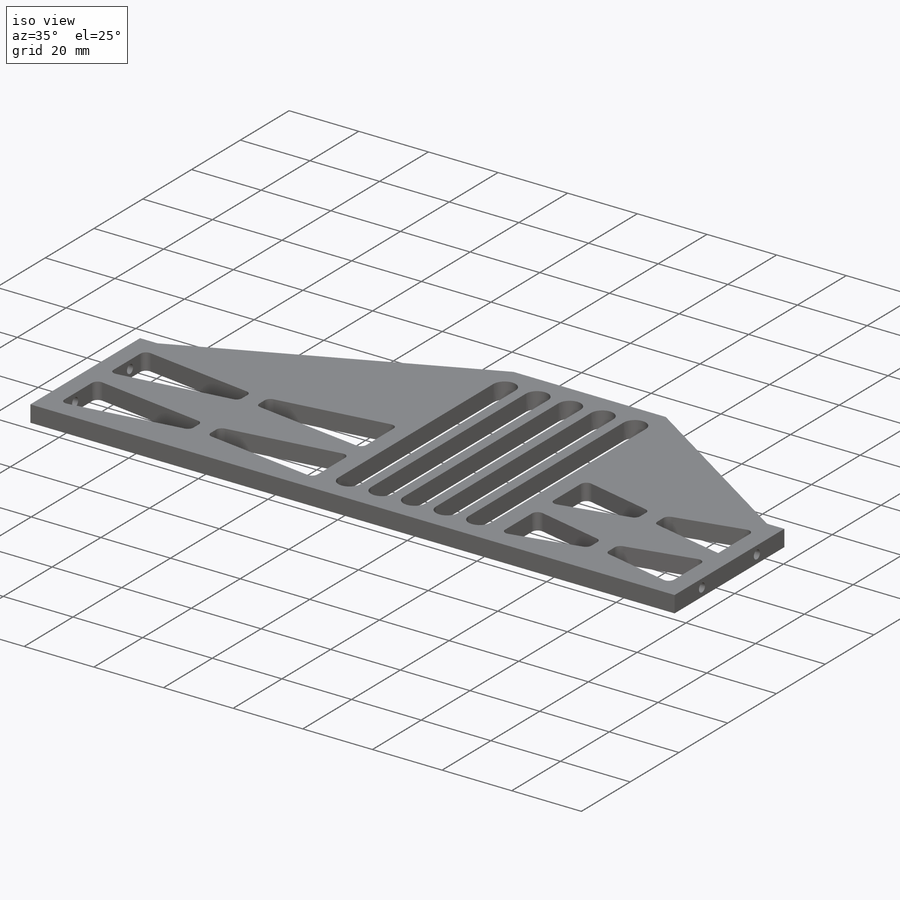
[diagram: iso view]
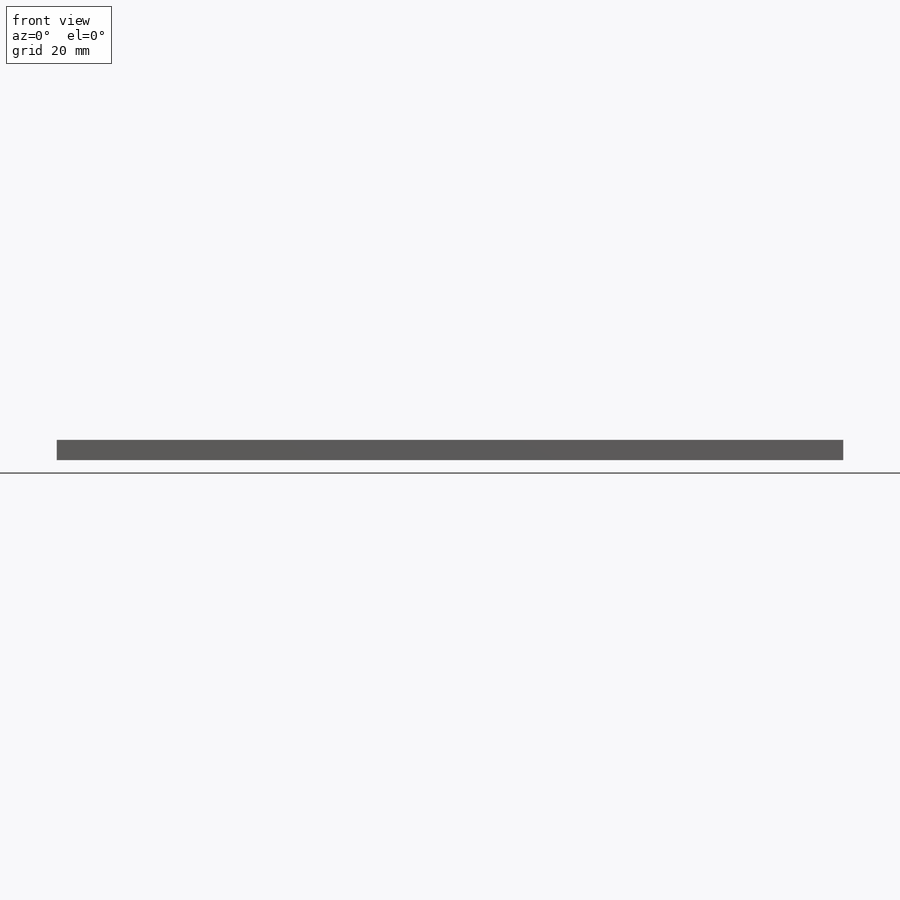
[diagram: front view]
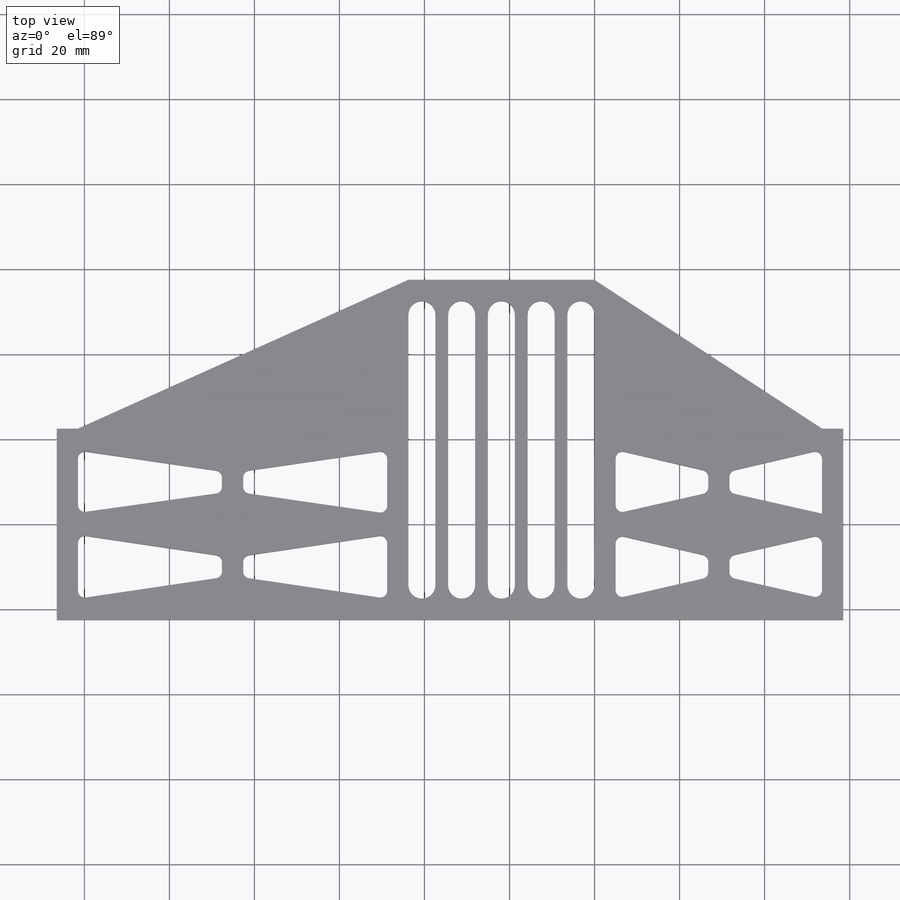
[diagram: top view]
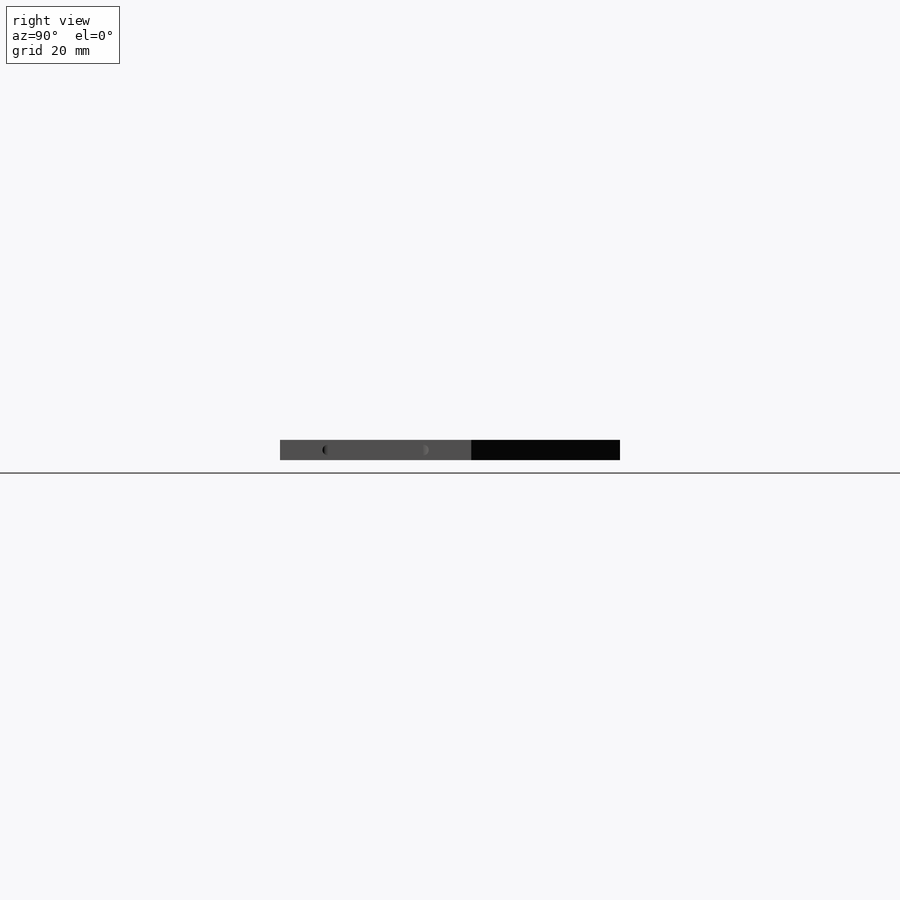
[diagram: right view]
SOLIDWORKS PART (.sldprt)
format: sldprt  version: not decoded by parser v0  size: 657,920 bytes
history: native  units: mm
features: sketch x5, hole x2, material x1, extrude x1 (+13 scaffold rows collapsed)
feature tree (22):
  scaffold x13  (default folders/planes/origin — collapsed)
  material  "6061-T6 (SS)"
  sketch  "Sketch2"  dims[c1.D2=3.975mm c1.D4=~3.143123mm c2.D2=~2.558656mm c2.D3=~2.376885mm c3.D2=~2.761315mm c3.D5=~2.813019mm c4.D2=~3.420018mm c4.D9=~3.49167mm c4.D11=~3.500877mm c4.D3=1.3328mm c5.D9=1.5875mm c5.D13=1.5875mm c5.D16=1.5875mm c5.D5=3.3782mm c5.D6=~3.981905mm c6.D5=1.5875mm c6.D7=4.7625mm c6.D11=~3.301516mm c6.D13=1.5875mm c6.D16=1.5875mm c6.D22=1.5875mm c6.D25=1.5875mm c7.D5=~3.786794mm c7.D17=4.675mm c7.D24=1.5875mm c7.D1=22.0mm c7.D2=3.0mm c7.D3=~59.320858mm c8.D2=12.7564mm c8.D3=~59.320858mm c9.D2=9.7564mm c9.D3=~59.320858mm c10.D2=9.7654mm c10.D3=9.7564mm c11.D2=9.7564mm c11.D3=9.7564mm c11.D4=9.7564mm c11.D5=2.7308mm c12.D2=5.0mm c12.D3=5.0mm c13.D2=7.0mm c13.D3=7.0mm c14.D2=13.66mm c14.D3=13.66mm c15.D2=5.0mm c15.D3=3.3782mm c15.D4=3.0mm c15.D5=3.3782mm c15.D6=3.0mm c15.D7=3.0mm c15.D8=3.3782mm c15.D9=3.0mm c15.D10=3.3782mm c16.D3=3.0mm c16.D4=3.3782mm c17.D3=5.0mm c17.D4=5.0mm c18.D3=22.0mm c18.D4=22.0mm c19.D3=22.0mm c19.D4=22.0mm c20.D3=11.0mm c20.D4=11.0mm c21.D3=4.0mm c21.D4=11.0mm c22.D3=22.0mm c22.D4=22.0mm c23.D3=5.0mm c23.D1=9.526mm c23.D2=22.0mm c24.D3=2.5mm c24.D4=2.5mm c25.D3=~31.513853mm c25.D4=15.757mm c25.D5=2.5mm c25.D6=2.5mm c26.D5=~54.463016mm c26.D6=27.2815mm c26.D7=2.5mm c26.D8=2.5mm c27.D7=5.0mm c27.D8=10.0mm c27.D9=2.5mm c27.D10=2.5mm c28.D9=15.0mm c28.D10=7.5mm c28.D11=2.5mm c28.D12=2.5mm c29.D11=5.0mm c29.D8=15.0mm c30.D11=~6.01466mm c30.D12=5.0mm c31.D11=7.5mm c31.D13=2.5mm c31.D14=5.0mm c31.D15=7.5mm c31.D16=2.5mm c31.D17=2.5mm c32.D16=15.0mm c32.D17=7.5mm c32.D18=2.5mm c32.D19=2.5mm c33.D17=27.2815mm c33.D18=22.5mm c33.D19=5.0mm c33.D20=5.0mm c33.D21=12.5mm c34.D20=5.0mm c34.D21=5.0mm c34.D22=5.0mm c34.D23=15.0mm c34.D19=20.0mm c35.D20=40.0mm c35.D17=175.0mm c35.D8=~67.970679mm c35.D5=2.5mm c35.D6=2.5mm c35.D7=2.5mm c36.D8=2.5mm c36.D5=5.0mm c36.D6=1.5mm c36.D7=1.5mm c37.D6=12.525mm c37.D7=2.2375mm c38.D6=7.762mm c38.D7=10.0mm c39.D6=87.5mm c39.D7=5.0mm c39.D8=3.0mm c39.D9=3.0mm c39.D10=3.0mm c39.D11=~4.225179mm c39.D12=~4.225179mm c40.D11=5.0mm c40.D12=34.4mm c41.D11=~10.110147mm c41.D5=5.0mm c42.D11=5.0mm c42.D12=2.5mm c42.D3=5.0mm c42.D5=5.0mm c42.D4=2.5mm c42.D15=5.0mm c42.D18=2.5mm c42.D19=5.0mm c42.D20=~49.317547mm c43.D20=~0.116437deg c44.D20=~66.017517mm c45.D20=~0.116437deg c46.D20=5.0mm c46.D21=5.0mm c46.D23=5.0mm c46.D24=5.0mm c46.D26=5.0mm c46.D27=5.0mm c46.D28=35.0mm c47.D20=5.0mm c47.D21=5.0mm c47.D22=5.0mm c47.D23=80.0mm c47.D24=5.0mm c47.D27=5.0mm c47.D28=5.0mm c47.D29=185.0mm c47.D6=216.526mm c47.D13=5.0mm c47.D16=34.4mm c48.D13=5.0mm c48.D5=3.0mm c48.D16=5.0mm c48.D17=2.5mm c48.D20=5.0mm c48.D21=2.5mm c48.D22=5.0mm c48.D23=80.0mm]
  extrude  "Boss-Extrude1"  Depth=4.763mm
  hole  "Tap Drill for M3x0.5 Tap1"  Diameter=2.5mm Depth=5mm
  sketch  "Sketch4"  dims[D1=11.25mm D2=11.25mm]
  sketch  "Sketch3"  dims[hole-wizard template sketch: 60 standard entries collapsed; hole parameters kept: c18.Thru Hole Depth=5.0mm]
  hole  "Tap Drill for M3x0.5 Tap2"  Diameter=2.5mm Depth=5mm
  sketch  "Sketch6"  dims[D1=11.25mm D2=11.25mm]
  sketch  "Sketch5"  dims[hole-wizard template sketch: 60 standard entries collapsed; hole parameters kept: c18.Thru Hole Depth=5.0mm]
decode coverage: 8 of 8 modeling features carry decoded parameters
note: ~ marks probable driven/reference dimensions
note: suppression state not decoded; provenance and decode notes live in map.json
